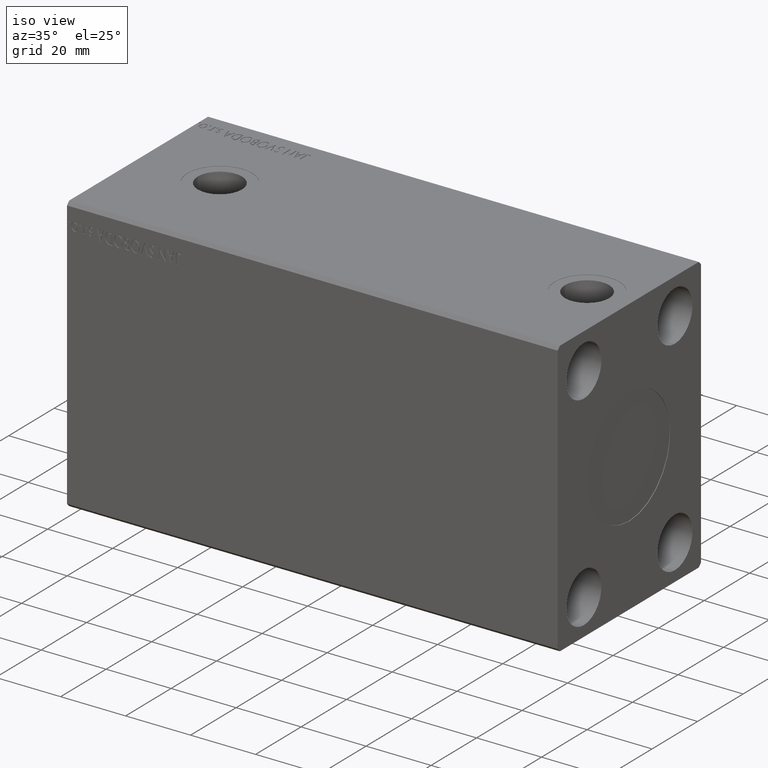
[diagram: clean part render]
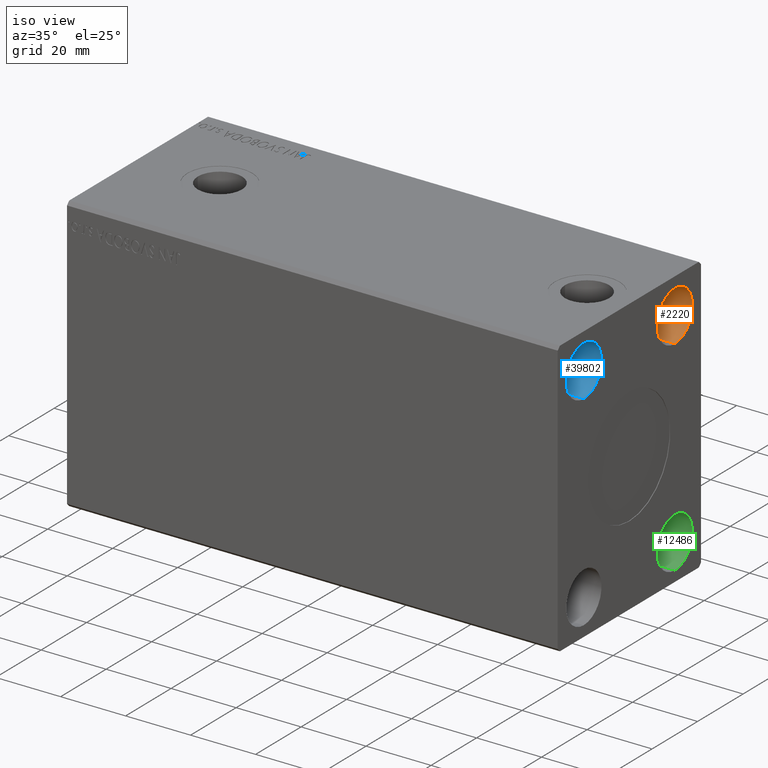
[diagram: same view with three faces highlighted in distinct colors, each labeled with its STEP entity id]
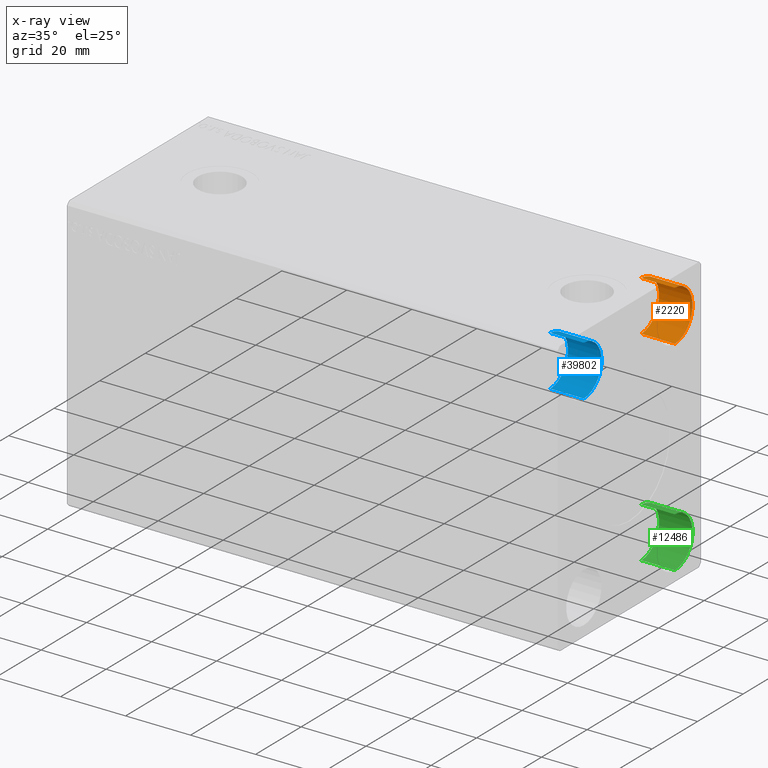
[diagram: x-ray of the same camera — body ghosted, the three highlighted faces saturated]
A machine part, iso view with three faces highlighted in distinct colors.
The next image is the same camera in x-ray (body ghosted, the three faces saturated) — at least one of them is partly hidden behind the body in this view.
Their STEP definitions:

[orange] entity #2220 — the highlighted cylindrical surface (edge-blend (fillet) strip) has radius 7.75 mm, axis along (1, -0, -0).
#1074 = CIRCLE ( 'NONE', #10670, 7.750000000000000000 ) ;
#1759 = CARTESIAN_POINT ( 'NONE',  ( 140.6699999999999875, 20.00000000000000355, 39.25000000000001421 ) ) ;
#2220 = ADVANCED_FACE ( 'NONE', ( #21155 ), #32028, .F. ) ;
#2407 = ORIENTED_EDGE ( 'NONE', *, *, #30905, .T. ) ;
#4475 = EDGE_CURVE ( 'NONE', #25423, #29537, #30612, .T. ) ;
#5920 = DIRECTION ( 'NONE',  ( 0.000000000000000000, 0.000000000000000000, -1.000000000000000000 ) ) ;
#9225 = CIRCLE ( 'NONE', #13343, 7.750000000000000000 ) ;
#9347 = CARTESIAN_POINT ( 'NONE',  ( 151.0000000000000000, 20.00000000000000355, 31.50000000000001421 ) ) ;
#9941 = ORIENTED_EDGE ( 'NONE', *, *, #40902, .T. ) ;
#10670 = AXIS2_PLACEMENT_3D ( 'NONE', #9347, #38482, #5920 ) ;
#12752 = DIRECTION ( 'NONE',  ( 1.000000000000000000, -0.000000000000000000, -0.000000000000000000 ) ) ;
#13343 = AXIS2_PLACEMENT_3D ( 'NONE', #39311, #12752, #26031 ) ;
#16038 = CARTESIAN_POINT ( 'NONE',  ( 140.6699999999999875, 20.00000000000000355, 23.75000000000001421 ) ) ;
#20597 = VERTEX_POINT ( 'NONE', #16038 ) ;
#21155 = FACE_OUTER_BOUND ( 'NONE', #24195, .T. ) ;
#21180 = CARTESIAN_POINT ( 'NONE',  ( 140.6699999999999875, 20.00000000000000355, 39.25000000000001421 ) ) ;
#22391 = CARTESIAN_POINT ( 'NONE',  ( 140.6699999999999875, 20.00000000000000355, 31.50000000000001421 ) ) ;
#22597 = DIRECTION ( 'NONE',  ( 1.000000000000000000, -0.000000000000000000, -0.000000000000000000 ) ) ;
#23525 = VERTEX_POINT ( 'NONE', #41173 ) ;
#23882 = LINE ( 'NONE', #37156, #34660 ) ;
#24195 = EDGE_LOOP ( 'NONE', ( #37460, #40096, #9941, #2407 ) ) ;
#24387 = DIRECTION ( 'NONE',  ( 1.000000000000000000, -0.000000000000000000, -0.000000000000000000 ) ) ;
#25423 = VERTEX_POINT ( 'NONE', #1759 ) ;
#26031 = DIRECTION ( 'NONE',  ( 0.000000000000000000, 0.000000000000000000, -1.000000000000000000 ) ) ;
#28296 = EDGE_CURVE ( 'NONE', #20597, #25423, #9225, .T. ) ;
#29537 = VERTEX_POINT ( 'NONE', #39210 ) ;
#29856 = AXIS2_PLACEMENT_3D ( 'NONE', #22391, #22597, #35450 ) ;
#30612 = LINE ( 'NONE', #21180, #38199 ) ;
#30905 = EDGE_CURVE ( 'NONE', #23525, #29537, #1074, .T. ) ;
#32028 = CYLINDRICAL_SURFACE ( 'NONE', #29856, 7.750000000000000000 ) ;
#34660 = VECTOR ( 'NONE', #40167, 1000.000000000000000 ) ;
#35450 = DIRECTION ( 'NONE',  ( 0.000000000000000000, 0.000000000000000000, -1.000000000000000000 ) ) ;
#37156 = CARTESIAN_POINT ( 'NONE',  ( 140.6699999999999875, 20.00000000000000355, 23.75000000000001421 ) ) ;
#37460 = ORIENTED_EDGE ( 'NONE', *, *, #4475, .F. ) ;
#38199 = VECTOR ( 'NONE', #24387, 1000.000000000000000 ) ;
#38482 = DIRECTION ( 'NONE',  ( 1.000000000000000000, -0.000000000000000000, -0.000000000000000000 ) ) ;
#39210 = CARTESIAN_POINT ( 'NONE',  ( 151.0000000000000000, 20.00000000000000355, 39.25000000000001421 ) ) ;
#39311 = CARTESIAN_POINT ( 'NONE',  ( 140.6699999999999875, 20.00000000000000355, 31.50000000000001421 ) ) ;
#40096 = ORIENTED_EDGE ( 'NONE', *, *, #28296, .F. ) ;
#40167 = DIRECTION ( 'NONE',  ( 1.000000000000000000, -0.000000000000000000, -0.000000000000000000 ) ) ;
#40902 = EDGE_CURVE ( 'NONE', #20597, #23525, #23882, .T. ) ;
#41173 = CARTESIAN_POINT ( 'NONE',  ( 151.0000000000000000, 20.00000000000000355, 23.75000000000001421 ) ) ;

[blue] entity #39802 — the highlighted cylindrical surface (edge-blend (fillet) strip) has radius 7.75 mm, axis along (1, -0, -0).
#18 = VERTEX_POINT ( 'NONE', #29812 ) ;
#1250 = VERTEX_POINT ( 'NONE', #37676 ) ;
#2670 = LINE ( 'NONE', #24764, #36715 ) ;
#2714 = FACE_OUTER_BOUND ( 'NONE', #15982, .T. ) ;
#3347 = DIRECTION ( 'NONE',  ( 1.000000000000000000, -0.000000000000000000, -0.000000000000000000 ) ) ;
#3550 = AXIS2_PLACEMENT_3D ( 'NONE', #35427, #16156, #19366 ) ;
#6594 = AXIS2_PLACEMENT_3D ( 'NONE', #39644, #10297, #14158 ) ;
#6907 = CARTESIAN_POINT ( 'NONE',  ( 151.0000000000000000, -19.99999999999999645, 39.25000000000001421 ) ) ;
#10297 = DIRECTION ( 'NONE',  ( -1.000000000000000000, -0.000000000000000000, -0.000000000000000000 ) ) ;
#10347 = DIRECTION ( 'NONE',  ( 1.000000000000000000, -0.000000000000000000, -0.000000000000000000 ) ) ;
#10787 = VECTOR ( 'NONE', #10347, 1000.000000000000000 ) ;
#12419 = CIRCLE ( 'NONE', #3550, 7.750000000000000000 ) ;
#12694 = VERTEX_POINT ( 'NONE', #6907 ) ;
#12929 = ORIENTED_EDGE ( 'NONE', *, *, #37899, .T. ) ;
#13336 = ORIENTED_EDGE ( 'NONE', *, *, #14531, .F. ) ;
#13781 = CARTESIAN_POINT ( 'NONE',  ( 140.6699999999999875, -19.99999999999999645, 23.75000000000001421 ) ) ;
#14152 = CIRCLE ( 'NONE', #6594, 7.750000000000000000 ) ;
#14158 = DIRECTION ( 'NONE',  ( 0.000000000000000000, 0.000000000000000000, 1.000000000000000000 ) ) ;
#14531 = EDGE_CURVE ( 'NONE', #12694, #1250, #12419, .T. ) ;
#15982 = EDGE_LOOP ( 'NONE', ( #17599, #12929, #19449, #13336 ) ) ;
#16156 = DIRECTION ( 'NONE',  ( -1.000000000000000000, -0.000000000000000000, -0.000000000000000000 ) ) ;
#17599 = ORIENTED_EDGE ( 'NONE', *, *, #32952, .F. ) ;
#18341 = DIRECTION ( 'NONE',  ( 1.000000000000000000, -0.000000000000000000, -0.000000000000000000 ) ) ;
#19366 = DIRECTION ( 'NONE',  ( 0.000000000000000000, 0.000000000000000000, 1.000000000000000000 ) ) ;
#19449 = ORIENTED_EDGE ( 'NONE', *, *, #36677, .T. ) ;
#24764 = CARTESIAN_POINT ( 'NONE',  ( 140.6699999999999875, -19.99999999999999645, 39.25000000000001421 ) ) ;
#25696 = VERTEX_POINT ( 'NONE', #41614 ) ;
#29812 = CARTESIAN_POINT ( 'NONE',  ( 140.6699999999999875, -19.99999999999999645, 23.75000000000001421 ) ) ;
#31648 = CYLINDRICAL_SURFACE ( 'NONE', #34024, 7.750000000000000000 ) ;
#32952 = EDGE_CURVE ( 'NONE', #25696, #12694, #2670, .T. ) ;
#33266 = LINE ( 'NONE', #13781, #10787 ) ;
#33563 = CARTESIAN_POINT ( 'NONE',  ( 140.6699999999999875, -19.99999999999999645, 31.50000000000001421 ) ) ;
#34024 = AXIS2_PLACEMENT_3D ( 'NONE', #33563, #3347, #36566 ) ;
#35427 = CARTESIAN_POINT ( 'NONE',  ( 151.0000000000000000, -19.99999999999999645, 31.50000000000001421 ) ) ;
#36566 = DIRECTION ( 'NONE',  ( 0.000000000000000000, 0.000000000000000000, -1.000000000000000000 ) ) ;
#36677 = EDGE_CURVE ( 'NONE', #18, #1250, #33266, .T. ) ;
#36715 = VECTOR ( 'NONE', #18341, 1000.000000000000000 ) ;
#37676 = CARTESIAN_POINT ( 'NONE',  ( 151.0000000000000000, -19.99999999999999645, 23.75000000000001421 ) ) ;
#37899 = EDGE_CURVE ( 'NONE', #25696, #18, #14152, .T. ) ;
#39644 = CARTESIAN_POINT ( 'NONE',  ( 140.6699999999999875, -19.99999999999999645, 31.50000000000001421 ) ) ;
#39802 = ADVANCED_FACE ( 'NONE', ( #2714 ), #31648, .F. ) ;
#41614 = CARTESIAN_POINT ( 'NONE',  ( 140.6699999999999875, -19.99999999999999645, 39.25000000000001421 ) ) ;

[green] entity #12486 — the highlighted cylindrical surface (edge-blend (fillet) strip) has radius 7.75 mm, axis along (1, -0, -0).
#298 = CARTESIAN_POINT ( 'NONE',  ( 140.6699999999999875, 20.00000000000000355, -23.74999999999998579 ) ) ;
#1645 = CYLINDRICAL_SURFACE ( 'NONE', #29520, 7.750000000000000000 ) ;
#2289 = ORIENTED_EDGE ( 'NONE', *, *, #26024, .T. ) ;
#2361 = CARTESIAN_POINT ( 'NONE',  ( 140.6699999999999875, 20.00000000000000355, -23.74999999999998579 ) ) ;
#3047 = VECTOR ( 'NONE', #42420, 1000.000000000000000 ) ;
#5250 = VERTEX_POINT ( 'NONE', #298 ) ;
#5270 = CARTESIAN_POINT ( 'NONE',  ( 140.6699999999999875, 20.00000000000000355, -31.49999999999998579 ) ) ;
#5771 = DIRECTION ( 'NONE',  ( 1.000000000000000000, -0.000000000000000000, -0.000000000000000000 ) ) ;
#6405 = DIRECTION ( 'NONE',  ( 0.000000000000000000, 0.000000000000000000, 1.000000000000000000 ) ) ;
#6797 = VERTEX_POINT ( 'NONE', #37883 ) ;
#7292 = AXIS2_PLACEMENT_3D ( 'NONE', #28031, #38498, #14975 ) ;
#7522 = VERTEX_POINT ( 'NONE', #8994 ) ;
#8994 = CARTESIAN_POINT ( 'NONE',  ( 140.6699999999999875, 20.00000000000000355, -39.24999999999998579 ) ) ;
#9430 = LINE ( 'NONE', #2361, #3047 ) ;
#11509 = EDGE_CURVE ( 'NONE', #5250, #7522, #26752, .T. ) ;
#12486 = ADVANCED_FACE ( 'NONE', ( #21357 ), #1645, .F. ) ;
#14975 = DIRECTION ( 'NONE',  ( 0.000000000000000000, 0.000000000000000000, 1.000000000000000000 ) ) ;
#15130 = AXIS2_PLACEMENT_3D ( 'NONE', #28909, #17299, #6405 ) ;
#16981 = ORIENTED_EDGE ( 'NONE', *, *, #11509, .T. ) ;
#17299 = DIRECTION ( 'NONE',  ( -1.000000000000000000, -0.000000000000000000, -0.000000000000000000 ) ) ;
#21357 = FACE_OUTER_BOUND ( 'NONE', #28285, .T. ) ;
#22358 = CARTESIAN_POINT ( 'NONE',  ( 151.0000000000000000, 20.00000000000000355, -23.74999999999998579 ) ) ;
#24770 = DIRECTION ( 'NONE',  ( 0.000000000000000000, 0.000000000000000000, -1.000000000000000000 ) ) ;
#25493 = LINE ( 'NONE', #41145, #28989 ) ;
#26024 = EDGE_CURVE ( 'NONE', #7522, #6797, #25493, .T. ) ;
#26752 = CIRCLE ( 'NONE', #15130, 7.750000000000000000 ) ;
#27577 = DIRECTION ( 'NONE',  ( 1.000000000000000000, -0.000000000000000000, -0.000000000000000000 ) ) ;
#28031 = CARTESIAN_POINT ( 'NONE',  ( 151.0000000000000000, 20.00000000000000355, -31.49999999999998579 ) ) ;
#28070 = EDGE_CURVE ( 'NONE', #5250, #35891, #9430, .T. ) ;
#28285 = EDGE_LOOP ( 'NONE', ( #39714, #16981, #2289, #29653 ) ) ;
#28909 = CARTESIAN_POINT ( 'NONE',  ( 140.6699999999999875, 20.00000000000000355, -31.49999999999998579 ) ) ;
#28989 = VECTOR ( 'NONE', #5771, 1000.000000000000000 ) ;
#29520 = AXIS2_PLACEMENT_3D ( 'NONE', #5270, #27577, #24770 ) ;
#29653 = ORIENTED_EDGE ( 'NONE', *, *, #32646, .F. ) ;
#32646 = EDGE_CURVE ( 'NONE', #35891, #6797, #33286, .T. ) ;
#33286 = CIRCLE ( 'NONE', #7292, 7.750000000000000000 ) ;
#35891 = VERTEX_POINT ( 'NONE', #22358 ) ;
#37883 = CARTESIAN_POINT ( 'NONE',  ( 151.0000000000000000, 20.00000000000000355, -39.24999999999998579 ) ) ;
#38498 = DIRECTION ( 'NONE',  ( -1.000000000000000000, -0.000000000000000000, -0.000000000000000000 ) ) ;
#39714 = ORIENTED_EDGE ( 'NONE', *, *, #28070, .F. ) ;
#41145 = CARTESIAN_POINT ( 'NONE',  ( 140.6699999999999875, 20.00000000000000355, -39.24999999999998579 ) ) ;
#42420 = DIRECTION ( 'NONE',  ( 1.000000000000000000, -0.000000000000000000, -0.000000000000000000 ) ) ;